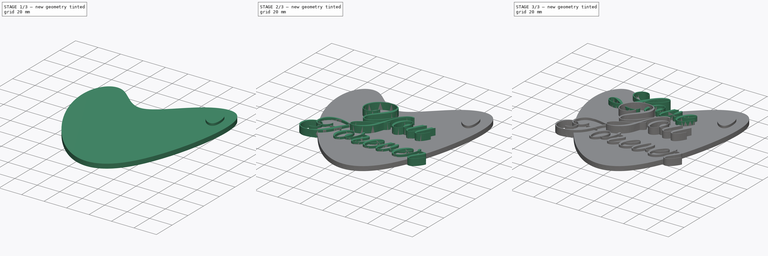
[diagram: build sequence overview — one tinted view per stage of 3, left to right]
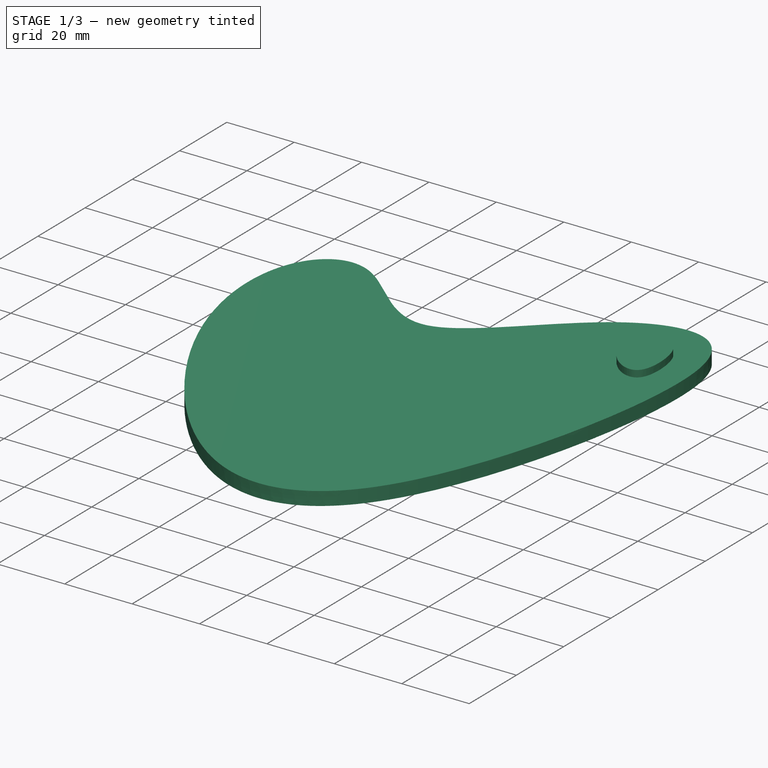
[diagram: stage 1 of 3 — iso view after this stage's code; geometry added in this stage tinted green]
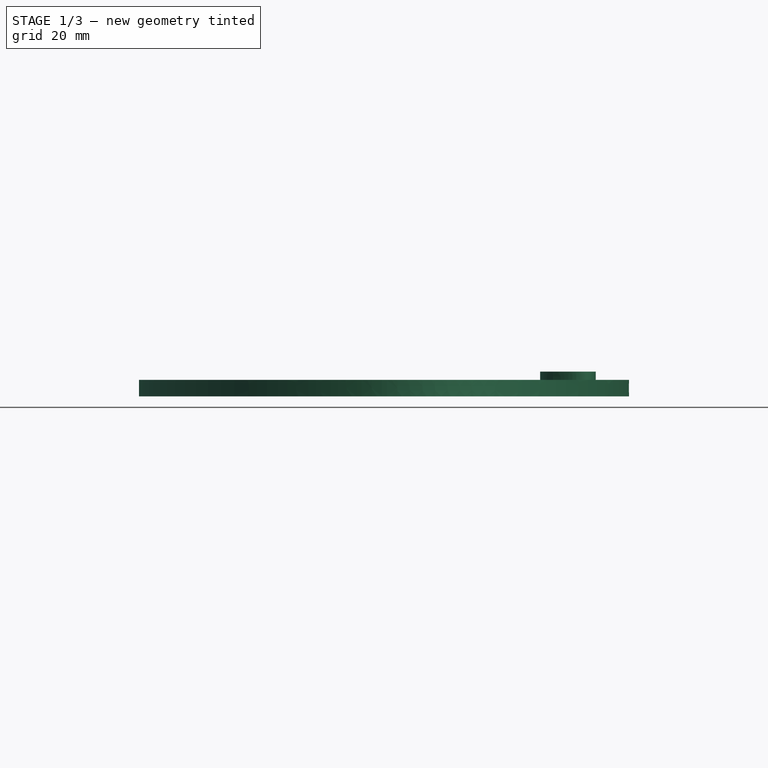
[diagram: stage 1 of 3 — front view after this stage's code; geometry added in this stage tinted green]
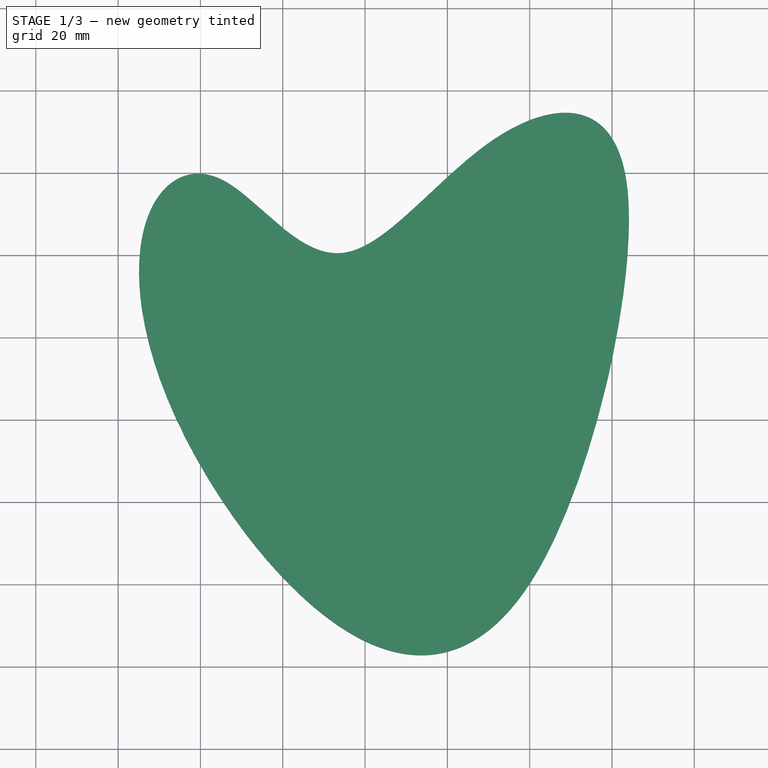
[diagram: stage 1 of 3 — top view after this stage's code; geometry added in this stage tinted green]
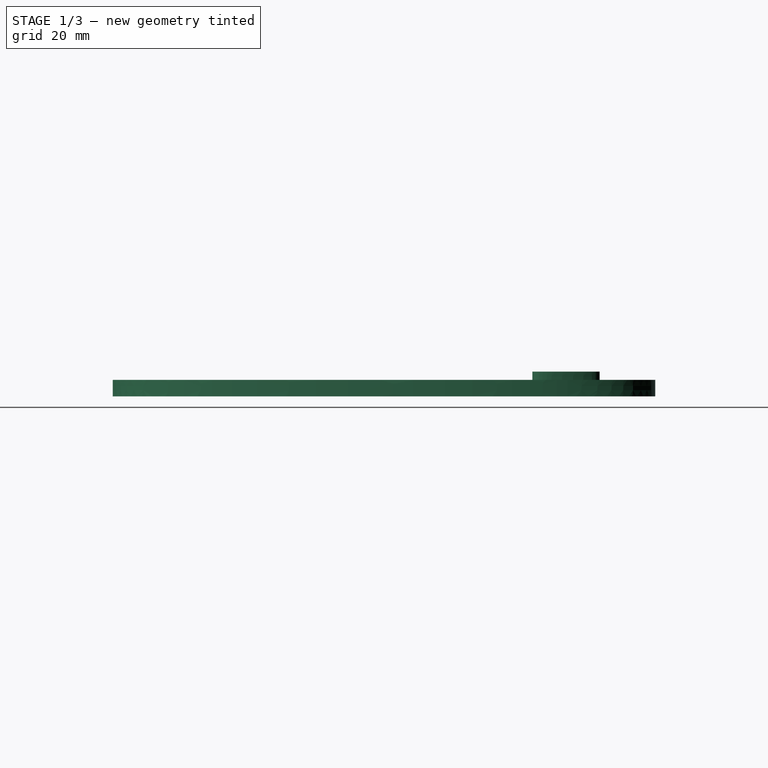
[diagram: stage 1 of 3 — right view after this stage's code; geometry added in this stage tinted green]
FCSTD DOCUMENT  (FreeCAD 1.0R39109 (Git))
Label: Sign
License: All rights reserved
LicenseURL: https://en.wikipedia.org/wiki/All_rights_reserved
objects: Part::Extrusion×5, Part::Part2DObjectPython×3, Sketcher::SketchObject×2, Part::MultiFuse×2, App::Part×1
note: 14 computed .brp shape members not serialized (recipe doc carries the construction recipe); baked Part::Feature solids carry a one-line shape summary decoded from their .brp

FEATURE [Sketcher::SketchObject] Sketch001
  ArcFitTolerance = 1e-06
  FullyConstrained = true
  MakeInternals = false
  Placement = pos=(-5,0,0) rot=(0,0,1;0rad)
  sketch-geometry (13):
    g0-g4: GeomPoint [constr] x5 (B-spline internal-alignment scaffolding for g5; pole/knot coordinates omitted)
    g5: BSplineCurve PolesCount=6 KnotsCount=6 Degree=3 IsPeriodic=1
    g6-g11: Circle [constr] x6 (B-spline internal-alignment scaffolding for g5; pole/knot coordinates omitted)
    g12: GeomPoint [constr] X=75.3494 Y=37.0045 Z=0
  constraints (26):
    c: InternalAlignment(g0-g4 -> g5) x5
    c: InternalAlignment(g6,g5)
    c: Weight(g6) = 1
    c: InternalAlignment(g7,g5)
    c: Equal(g7,g6)
    c: InternalAlignment(g8,g5)
    c: Equal(g8,g6)
    c: InternalAlignment(g9,g5)
    c: Equal(g9,g6)
    c: InternalAlignment(g10,g5)
    c: Equal(g10,g6)
    c: InternalAlignment(g11,g5)
    c: Equal(g11,g6)
    c: InternalAlignment(g12,g5)
    c: DistanceX(g9) = 84.547
    c: DistanceY(g9) = 16.28
    c: DistanceX(g10) = 65.9937
    c: DistanceY(g10) = 30.045
    c: DistanceX(g11) = 68.4459
    c: DistanceY(g11) = 42.8985
    c: DistanceX(g6) = 73.788
    c: DistanceY(g6) = 33.0264
    c: DistanceX(g7) = 76.4279
    c: DistanceY(g7) = 39.7522
    c: DistanceX(g8) = 79.988
    c: DistanceY(g8) = 45.2018
FEATURE [Part::Extrusion] Extrude003  label="MiniHeart"
  Base = -> Sketch001
  Dir = (0,0,1)
  DirMode = 2
  FaceMakerClass = Part::FaceMakerBullseye
  FaceMakerMode = 3
  LengthFwd = 6
  LengthRev = 0
  Solid = true
  Symmetric = false
FEATURE [Sketcher::SketchObject] Sketch002
  ArcFitTolerance = 1e-06
  FullyConstrained = true
  MakeInternals = false
  MapMode = 5
  sketch-geometry (18):
    g0-g7: Circle [constr] x8 (B-spline internal-alignment scaffolding for g8; pole/knot coordinates omitted)
    g8: BSplineCurve PolesCount=8 KnotsCount=9 Degree=3 IsPeriodic=1
    g9-g17: GeomPoint [constr] x9 (B-spline internal-alignment scaffolding for g8; pole/knot coordinates omitted)
  constraints (20):
    c: Weight(g0) = 1
    c: Equal(g0, g1-g7) x7
    c: InternalAlignment(g0-g7 -> g8) x8
    c: InternalAlignment(g9-g17 -> g8) x9
    c: DistanceX(g2) = 96.7058
    c: DistanceY(g2) = 60.5359
    c: DistanceX(g1) = 49.5912
    c: DistanceY(g1) = 55.9982
    c: DistanceX(g3) = 65.7924
    c: DistanceY(g3) = -78.0226
    c: DistanceX(g4) = 14.9846
    c: DistanceY(g4) = -83.2946
    c: DistanceX(g5) = -33.2792
    c: DistanceY(g5) = -16.5021
    c: DistanceX(g6) = -38.2055
    c: DistanceY(g6) = 32.8877
    c: DistanceX(g7) = -15.0719
    c: DistanceY(g7) = 47.6134
    c: DistanceX(g0) = 13.4934
    c: DistanceY(g0) = 4.97598
FEATURE [Part::Extrusion] Extrude004  label="Heart"
  Base = -> Sketch002
  Dir = (0,0,1)
  DirMode = 2
  FaceMakerClass = Part::FaceMakerBullseye
  FaceMakerMode = 3
  LengthFwd = 4
  LengthRev = 0
  Solid = true
  Symmetric = false
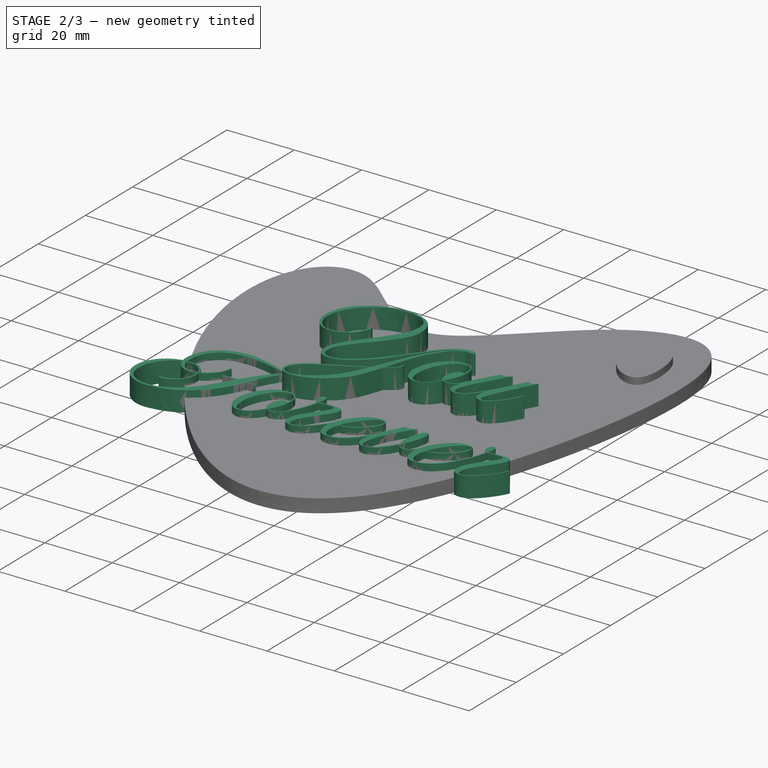
[diagram: stage 2 of 3 — iso view after this stage's code; geometry added in this stage tinted green]
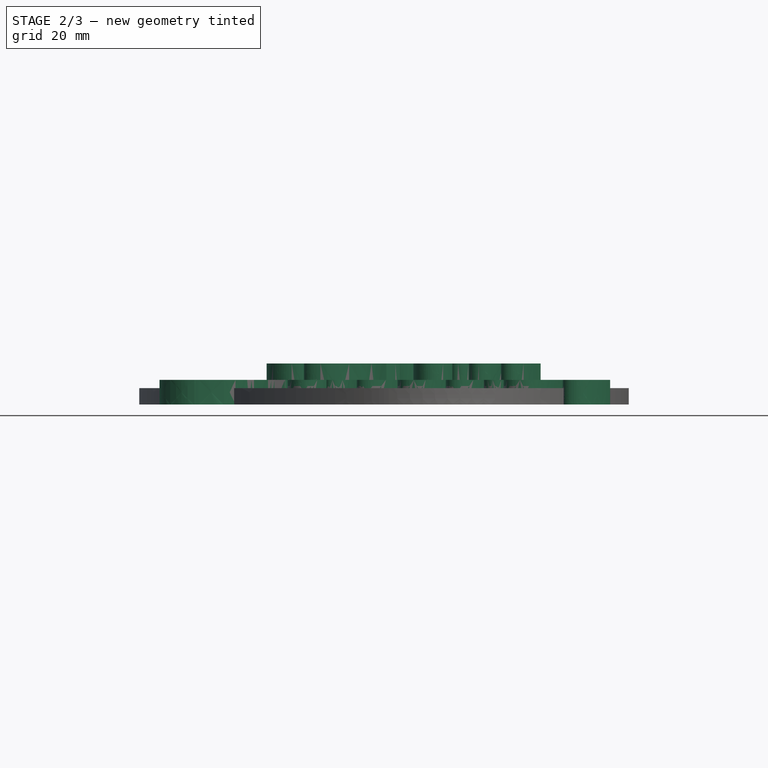
[diagram: stage 2 of 3 — front view after this stage's code; geometry added in this stage tinted green]
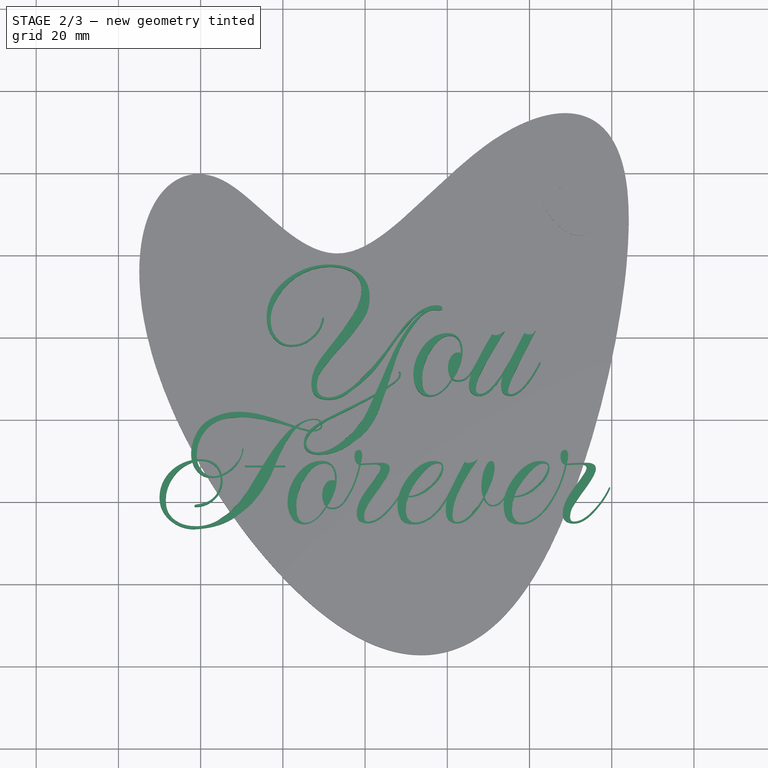
[diagram: stage 2 of 3 — top view after this stage's code; geometry added in this stage tinted green]
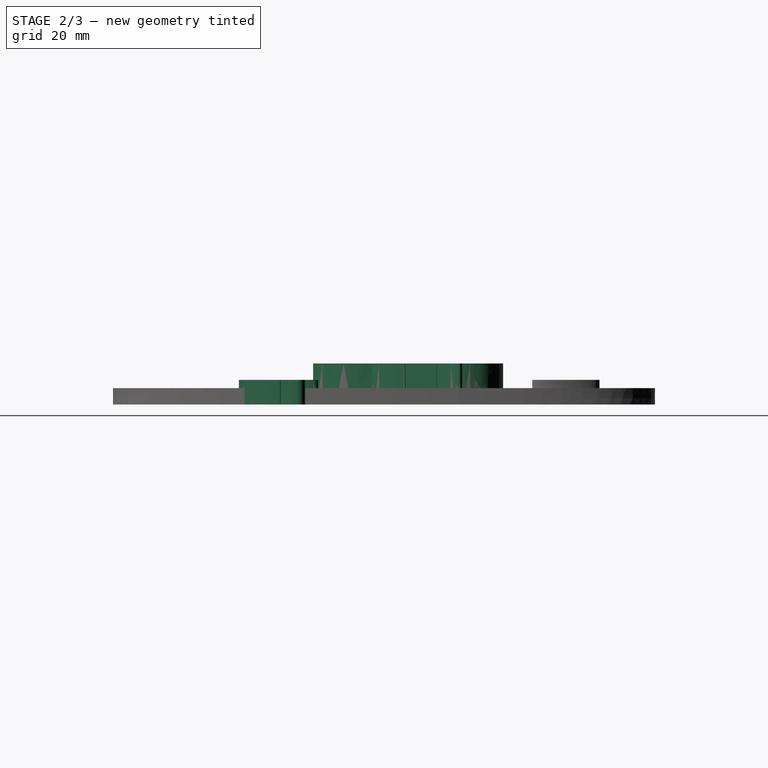
[diagram: stage 2 of 3 — right view after this stage's code; geometry added in this stage tinted green]
FEATURE [Part::Extrusion] Extrude001  label="You"
  Base = -> ShapeString001
  Dir = (0,0,1)
  DirMode = 2
  FaceMakerClass = Part::FaceMakerBullseye
  FaceMakerMode = 3
  LengthFwd = 10
  LengthRev = 0
  Placement = pos=(20,10,0) rot=(0,0,1;0rad)
  Solid = false
  Symmetric = false
FEATURE [Part::Extrusion] Extrude002  label="Forever"
  Base = -> ShapeString002
  Dir = (0,0,1)
  DirMode = 2
  FaceMakerClass = Part::FaceMakerBullseye
  FaceMakerMode = 3
  LengthFwd = 6
  LengthRev = 0
  Placement = pos=(10,5,0) rot=(0,0,1;0rad)
  Solid = false
  Symmetric = false
FEATURE [Part::MultiFuse] Fusion001  label="Base"
  Shapes = -> [Extrude003,Extrude004]
FEATURE [App::Part] Part
  Group = -> [ShapeString,ShapeString001,ShapeString002,Extrude,Extrude001,Extrude002,Fusion,Sketch001,Extrude004,Extrude003,Sketch002,Fusion001]
  Origin = -> Origin
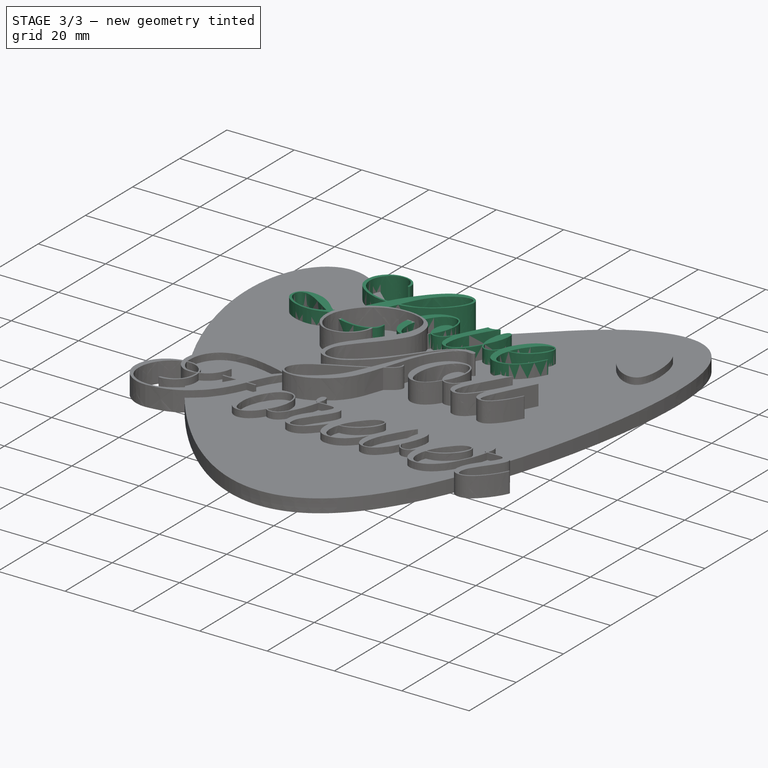
[diagram: stage 3 of 3 — iso view after this stage's code; geometry added in this stage tinted green]
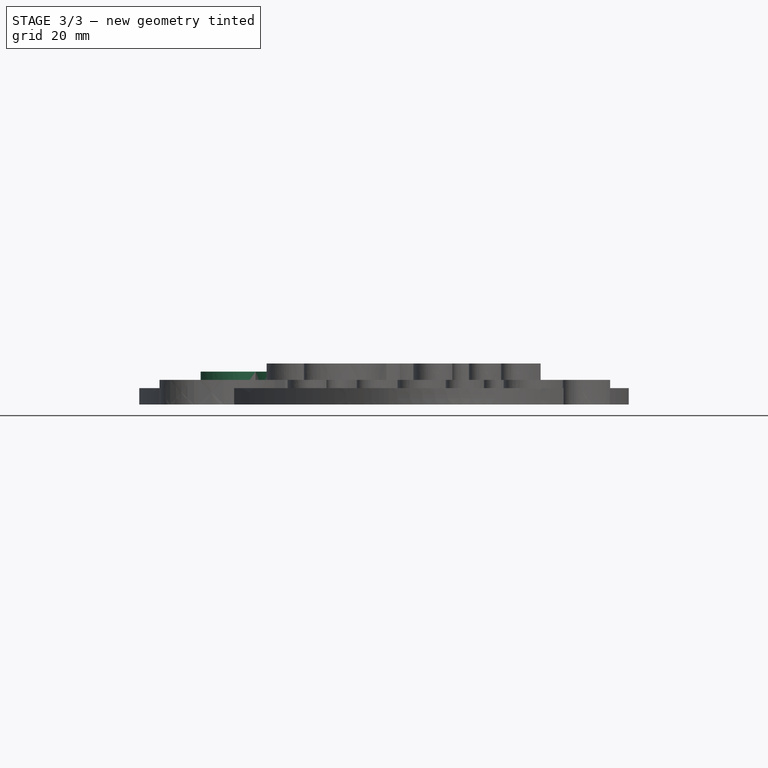
[diagram: stage 3 of 3 — front view after this stage's code; geometry added in this stage tinted green]
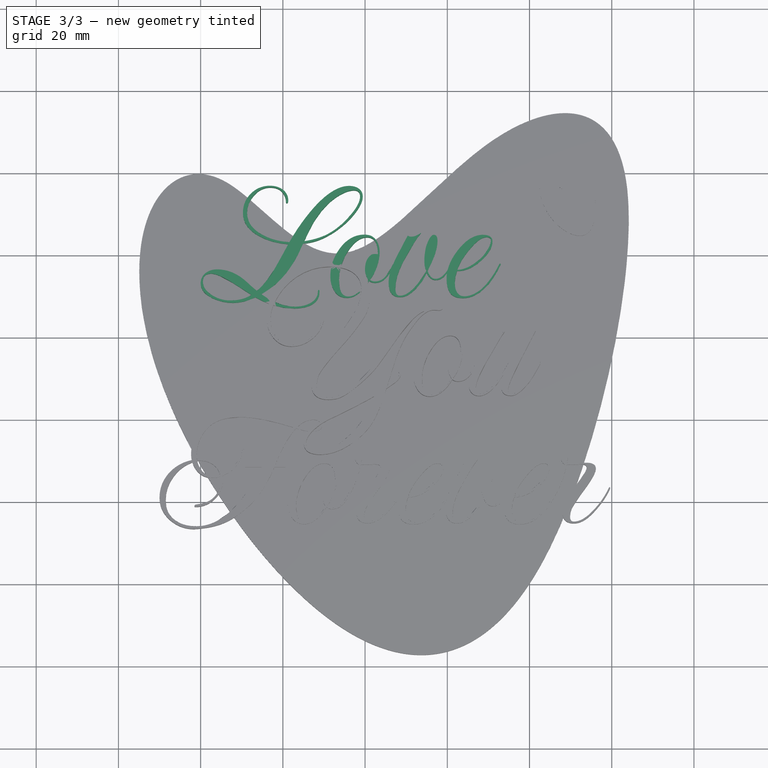
[diagram: stage 3 of 3 — top view after this stage's code; geometry added in this stage tinted green]
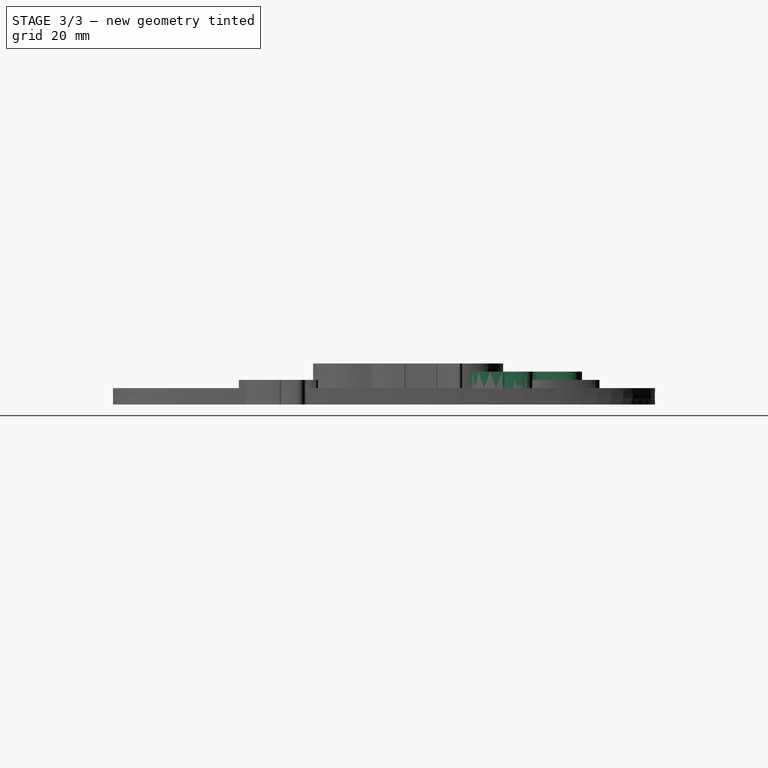
[diagram: stage 3 of 3 — right view after this stage's code; geometry added in this stage tinted green]
FEATURE [Part::Part2DObjectPython] ShapeString  # Draft 2D object (typed FeaturePython)
  FontFile = <userpath>/Downloads/fonts/Imperial_Script/ImperialScript-Regular.ttf
  Fuse = false
  Justification = 6
  JustificationReference = 0
  KeepLeftMargin = false
  MakeFace = true
  ObliqueAngle = 0
  ScaleToSize = true
  Size = 30
  String = Love
  Tracking = 0
FEATURE [Part::Part2DObjectPython] ShapeString001  # Draft 2D object (typed FeaturePython)
  FontFile = <userpath>/Downloads/fonts/Imperial_Script/ImperialScript-Regular.ttf
  Fuse = false
  Justification = 6
  JustificationReference = 0
  KeepLeftMargin = false
  MakeFace = true
  ObliqueAngle = 0
  Placement = pos=(-23.95,-24,0) rot=(0,0,1;0rad)
  ScaleToSize = true
  Size = 30
  String = You
  Tracking = 0
FEATURE [Part::Part2DObjectPython] ShapeString002  # Draft 2D object (typed FeaturePython)
  FontFile = <userpath>/Downloads/fonts/Imperial_Script/ImperialScript-Regular.ttf
  Fuse = false
  Justification = 6
  JustificationReference = 0
  KeepLeftMargin = false
  MakeFace = true
  ObliqueAngle = 0
  Placement = pos=(-40,-50,0) rot=(0,0,1;0rad)
  ScaleToSize = true
  Size = 30
  String = Forever
  Tracking = 0
FEATURE [Part::Extrusion] Extrude  label="Love"
  Base = -> ShapeString
  Dir = (0,0,1)
  DirMode = 2
  FaceMakerClass = Part::FaceMakerBullseye
  FaceMakerMode = 3
  LengthFwd = 8
  LengthRev = 0
  Placement = pos=(-20,10,0) rot=(0,0,1;0rad)
  Solid = false
  Symmetric = false
FEATURE [Part::MultiFuse] Fusion  label="Lettering"
  Shapes = -> [Extrude,Extrude001,Extrude002]
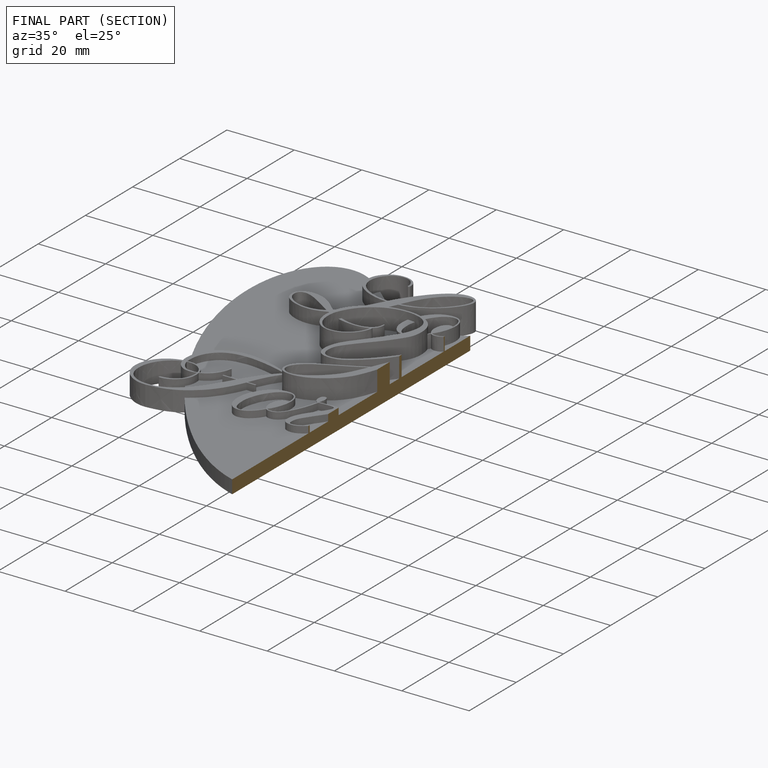
[diagram: finished part — half-section view (interior)]
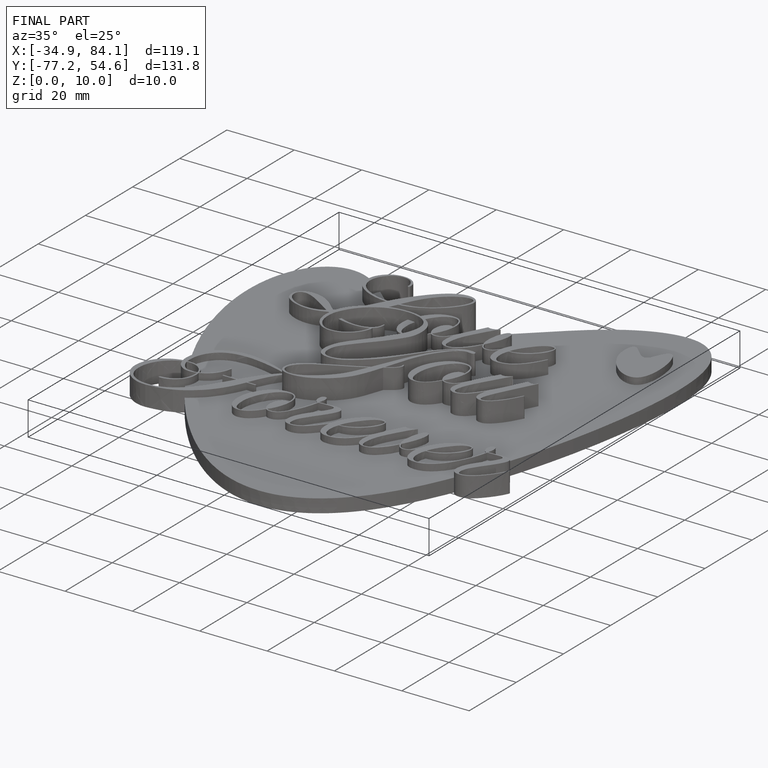
[diagram: finished part — iso view with bounding-box wireframe]
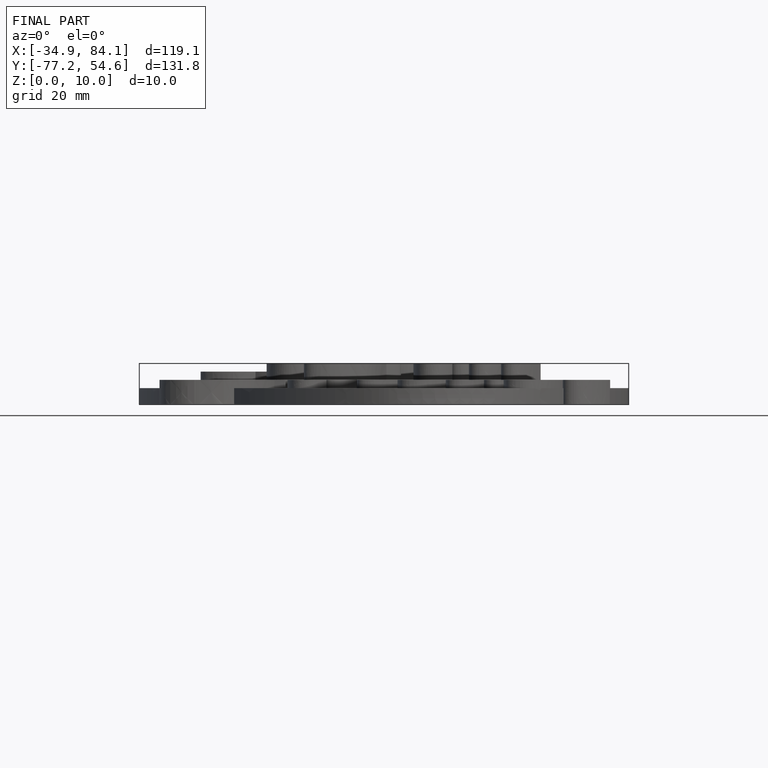
[diagram: finished part — front view with bounding-box wireframe]
